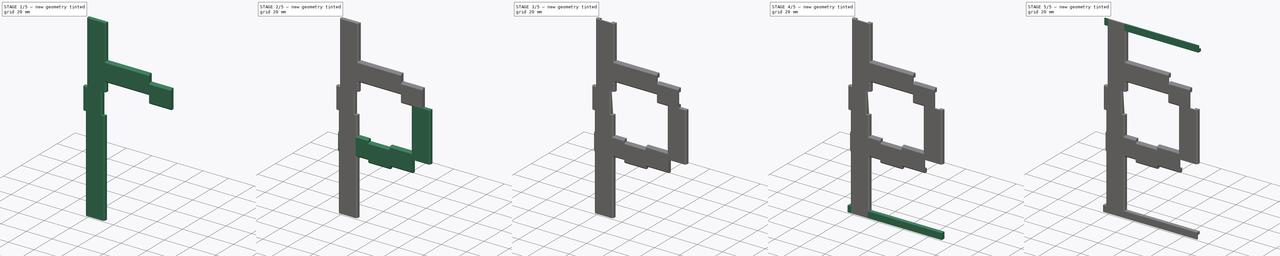
[diagram: build sequence overview — one tinted view per stage of 5, left to right]
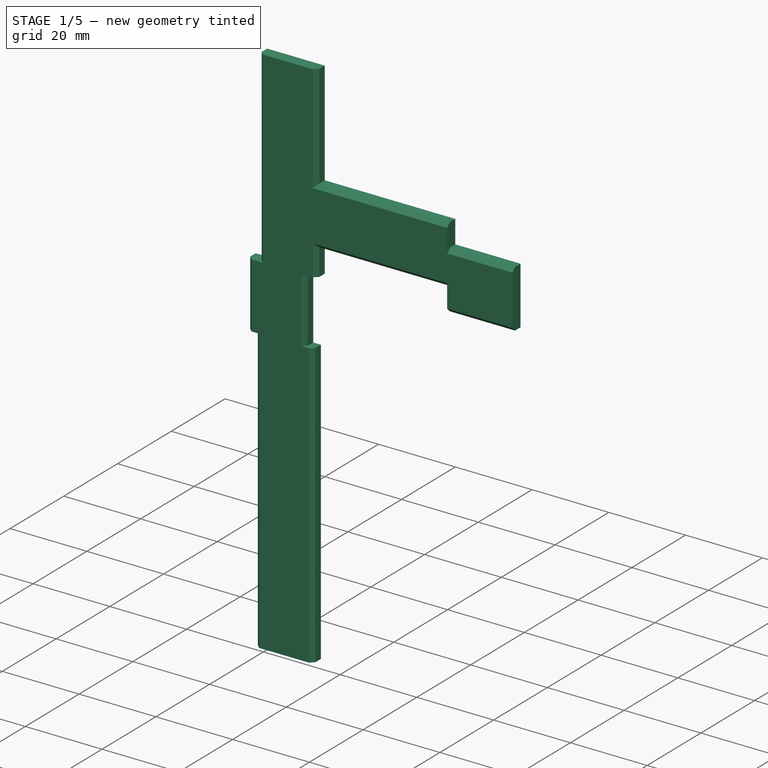
[diagram: stage 1 of 5 — iso view after this stage's code; geometry added in this stage tinted green]
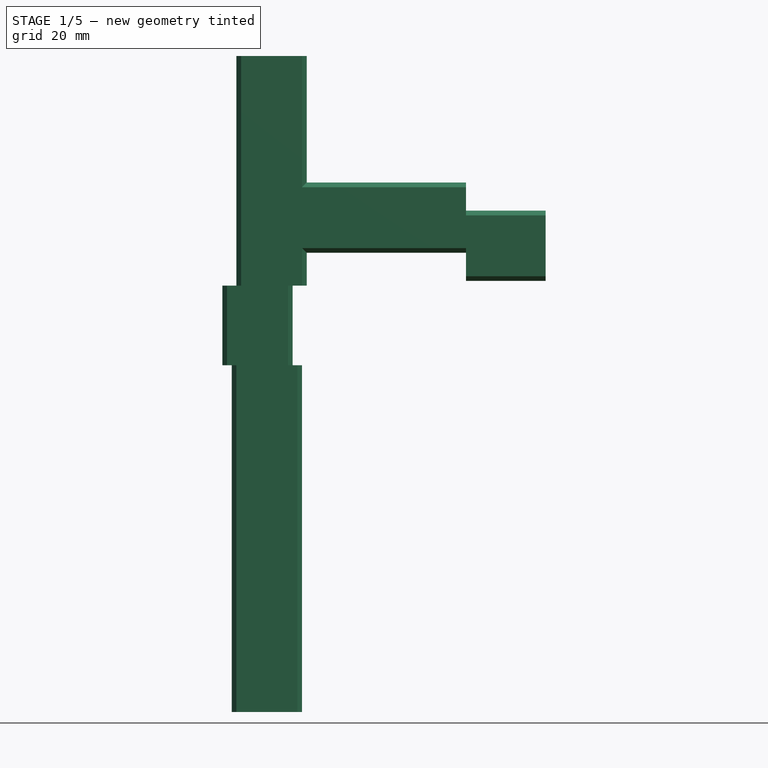
[diagram: stage 1 of 5 — front view after this stage's code; geometry added in this stage tinted green]
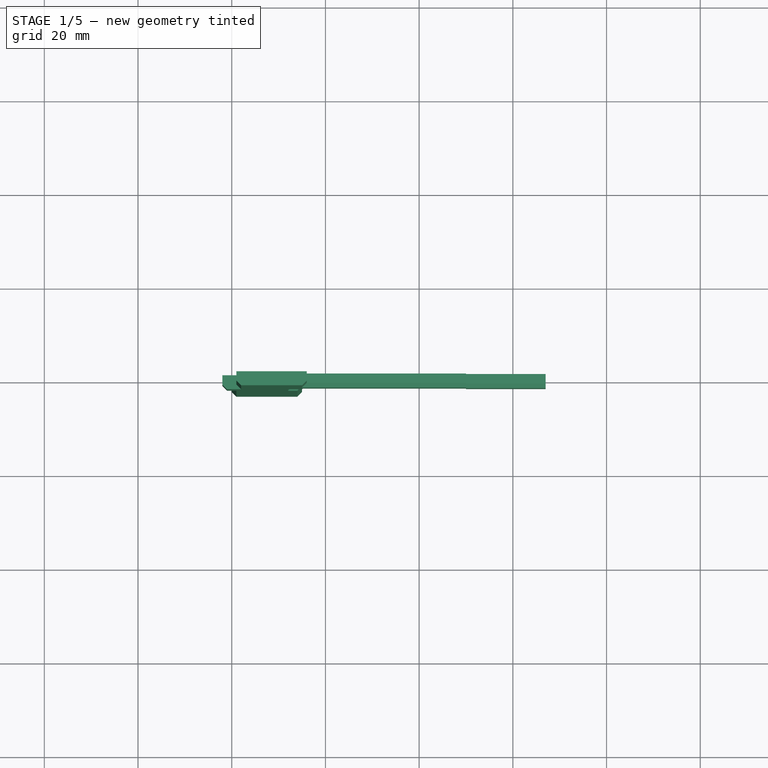
[diagram: stage 1 of 5 — top view after this stage's code; geometry added in this stage tinted green]
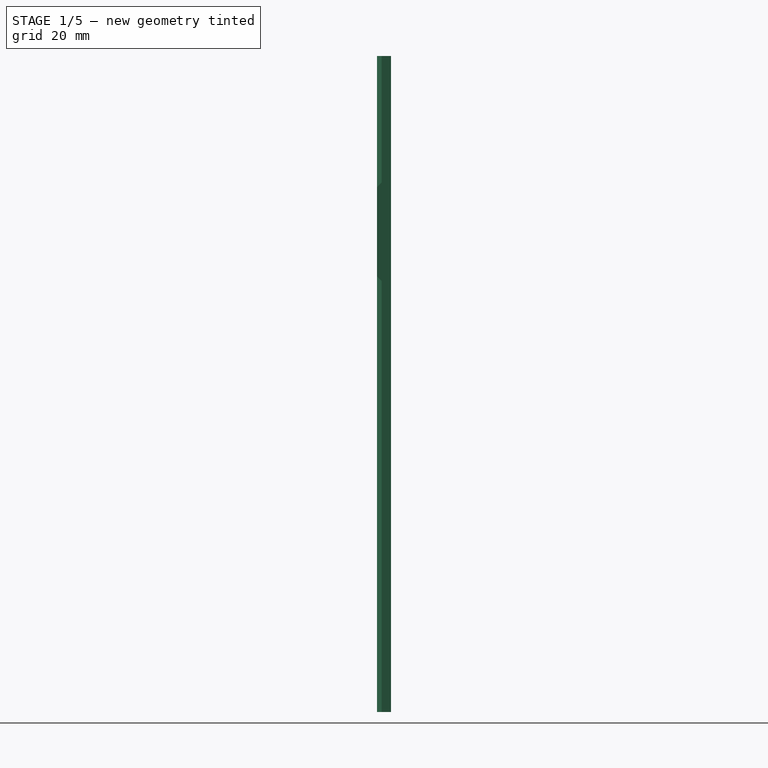
[diagram: stage 1 of 5 — right view after this stage's code; geometry added in this stage tinted green]
FCSTD DOCUMENT  (FreeCAD 0.20R29603 (Git))
Label: neopixelbracket_O
License: All rights reserved
LicenseURL: http://en.wikipedia.org/wiki/All_rights_reserved
objects: Sketcher::SketchObject×26, PartDesign::Pocket×13, PartDesign::Pad×11, PartDesign::Body×1
note: 75 computed .brp shape members not serialized (recipe doc carries the construction recipe); baked Part::Feature solids carry a one-line shape summary decoded from their .brp

FEATURE [Sketcher::SketchObject] Sketch  label="Vertical left long (start)"
  FullyConstrained = true
  MapMode = 5
  Support = -> [XY_Plane]
  sketch-geometry (6):
    g0: LineSegment StartX=0 StartY=0 StartZ=0 EndX=15 EndY=0 EndZ=0
    g1: LineSegment StartX=15 StartY=0 StartZ=0 EndX=15 EndY=-2 EndZ=0
    g2: LineSegment StartX=15 StartY=-2 StartZ=0 EndX=14 EndY=-3 EndZ=0
    g3: LineSegment StartX=14 StartY=-3 StartZ=0 EndX=1 EndY=-3 EndZ=0
    g4: LineSegment StartX=1 StartY=-3 StartZ=0 EndX=0 EndY=-2 EndZ=0
    g5: LineSegment StartX=0 StartY=-2 StartZ=0 EndX=0 EndY=0 EndZ=0
  constraints (17):
    c: Horizontal(g0)
    c: Coincident(g0,g1)
    c: Vertical(g1)
    c: Coincident(g1,g2)
    c: Coincident(g2,g3)
    c: Horizontal(g3)
    c: Coincident(g3,g4)
    c: Coincident(g4,g5)
    c: Coincident(g5,g0)
    c: Vertical(g5)
    c: DistanceX(g0,g0) = 15
    c: DistanceY(g1,g1) = 2
    c: DistanceY(g2,g2) = 1
    c: DistanceX(g2,g2) = 1
    c: DistanceY(g5,g5) = 2
    c: DistanceX(g4,g4) = 1
    c: Coincident(g0,g-1)
FEATURE [Sketcher::SketchObject] Sketch001  label="SketchSjabloon1"
  FullyConstrained = false
  MapMode = 5
  sketch-geometry (6):
    g0: LineSegment StartX=20.6736 StartY=7.69655 StartZ=0 EndX=35.6736 EndY=7.69655 EndZ=0
    g1: LineSegment StartX=35.6736 StartY=7.69655 StartZ=0 EndX=35.6736 EndY=5.69655 EndZ=0
    g2: LineSegment StartX=35.6736 StartY=5.69655 StartZ=0 EndX=34.6736 EndY=4.69655 EndZ=0
    g3: LineSegment StartX=34.6736 StartY=4.69655 StartZ=0 EndX=21.6736 EndY=4.69655 EndZ=0
    g4: LineSegment StartX=21.6736 StartY=4.69655 StartZ=0 EndX=20.6736 EndY=5.69655 EndZ=0
    g5: LineSegment StartX=20.6736 StartY=5.69655 StartZ=0 EndX=20.6736 EndY=7.69655 EndZ=0
  constraints (16):
    c: Horizontal(g0)
    c: Coincident(g0,g1)
    c: Vertical(g1)
    c: Coincident(g1,g2)
    c: Coincident(g2,g3)
    c: Horizontal(g3)
    c: Coincident(g3,g4)
    c: Coincident(g4,g5)
    c: Coincident(g5,g0)
    c: Vertical(g5)
    c: DistanceX(g0,g0) = 15
    c: DistanceY(g1,g1) = 2
    c: DistanceY(g2,g2) = 1
    c: DistanceX(g2,g2) = 1
    c: DistanceY(g5,g5) = 2
    c: DistanceX(g4,g4) = 1
FEATURE [PartDesign::Pad] Pad
  Direction = (0,0,1)
  Length = 74
  Length2 = 10
  Profile = -> Sketch
  ReferenceAxis = -> Sketch [N_Axis]
  Type = 0
FEATURE [Sketcher::SketchObject] Sketch002  label="Vertical left (2)"
  FullyConstrained = true
  MapMode = 5
  Placement = pos=(0,0,74) rot=(0,0,1;0rad)
  Support = -> [Pad]
  sketch-geometry (6):
    g0: LineSegment StartX=-2 StartY=0 StartZ=0 EndX=13 EndY=0 EndZ=0
    g1: LineSegment StartX=13 StartY=0 StartZ=0 EndX=13 EndY=-2 EndZ=0
    g2: LineSegment StartX=13 StartY=-2 StartZ=0 EndX=12 EndY=-3 EndZ=0
    g3: LineSegment StartX=12 StartY=-3 StartZ=0 EndX=-1 EndY=-3 EndZ=0
    g4: LineSegment StartX=-1 StartY=-3 StartZ=0 EndX=-2 EndY=-2 EndZ=0
    g5: LineSegment StartX=-2 StartY=-2 StartZ=0 EndX=-2 EndY=0 EndZ=0
  constraints (18):
    c: Horizontal(g0)
    c: Coincident(g0,g1)
    c: Vertical(g1)
    c: Coincident(g1,g2)
    c: Coincident(g2,g3)
    c: Horizontal(g3)
    c: Coincident(g3,g4)
    c: Coincident(g4,g5)
    c: Coincident(g5,g0)
    c: Vertical(g5)
    c: DistanceX(g0,g0) = 15
    c: DistanceY(g1,g1) = 2
    c: DistanceY(g2,g2) = 1
    c: DistanceX(g2,g2) = 1
    c: DistanceY(g5,g5) = 2
    c: DistanceX(g4,g4) = 1
    c: DistanceY(g-1,g0) = 0
    c: DistanceX(g0,g-1) = 2
FEATURE [PartDesign::Pad] Pad001
  BaseFeature = -> Pad
  Direction = (0,0,1)
  Length = 17
  Length2 = 10
  Profile = -> Sketch002
  ReferenceAxis = -> Sketch002 [N_Axis]
  Type = 0
FEATURE [Sketcher::SketchObject] Sketch003  label="Vertical left long (3)"
  ExternalGeometry = -> [Pad001]
  FullyConstrained = true
  MapMode = 5
  Placement = pos=(0,0,91) rot=(0,0,1;0rad)
  Support = -> [Pad001]
  sketch-geometry (6):
    g0: LineSegment StartX=1 StartY=0 StartZ=0 EndX=16 EndY=0 EndZ=0
    g1: LineSegment StartX=16 StartY=0 StartZ=0 EndX=16 EndY=-2 EndZ=0
    g2: LineSegment StartX=16 StartY=-2 StartZ=0 EndX=15 EndY=-3 EndZ=0
    g3: LineSegment StartX=15 StartY=-3 StartZ=0 EndX=2 EndY=-3 EndZ=0
    g4: LineSegment StartX=2 StartY=-3 StartZ=0 EndX=1 EndY=-2 EndZ=0
    g5: LineSegment StartX=1 StartY=-2 StartZ=0 EndX=1 EndY=0 EndZ=0
  constraints (18):
    c: Horizontal(g0)
    c: Coincident(g0,g1)
    c: Vertical(g1)
    c: Coincident(g1,g2)
    c: Coincident(g2,g3)
    c: Horizontal(g3)
    c: Coincident(g3,g4)
    c: Coincident(g4,g5)
    c: Coincident(g5,g0)
    c: Vertical(g5)
    c: DistanceX(g0,g0) = 15
    c: DistanceY(g1,g1) = 2
    c: DistanceY(g2,g2) = 1
    c: DistanceX(g2,g2) = 1
    c: DistanceY(g5,g5) = 2
    c: DistanceX(g4,g4) = 1
    c: DistanceY(g-3,g0) = 0
    c: DistanceX(g-3,g0) = 3
FEATURE [PartDesign::Pad] Pad002
  BaseFeature = -> Pad001
  Direction = (0,0,1)
  Length = 49
  Length2 = 10
  Profile = -> Sketch003
  ReferenceAxis = -> Sketch003 [N_Axis]
  Type = 0
FEATURE [Sketcher::SketchObject] Sketch004  label="Horizontal bottom (4)"
  AttachmentOffset = pos=(0,0,-1) rot=(0,0,1;-1.5708rad)
  ExternalGeometry = -> [Pad002]
  FullyConstrained = true
  MapMode = 5
  Placement = pos=(15,0,0) rot=(0,-1,0;4.71239rad)
  Support = -> [Pad002]
  sketch-geometry (6):
    g0: LineSegment StartX=-113 StartY=-8e-15 StartZ=0 EndX=-98 EndY=-8e-15 EndZ=0
    g1: LineSegment StartX=-98 StartY=-8e-15 StartZ=0 EndX=-98 EndY=-2 EndZ=0
    g2: LineSegment StartX=-98 StartY=-2 StartZ=0 EndX=-99 EndY=-3 EndZ=0
    g3: LineSegment StartX=-99 StartY=-3 StartZ=0 EndX=-112 EndY=-3 EndZ=0
    g4: LineSegment StartX=-112 StartY=-3 StartZ=0 EndX=-113 EndY=-2 EndZ=0
    g5: LineSegment StartX=-113 StartY=-2 StartZ=0 EndX=-113 EndY=-8e-15 EndZ=0
  constraints (18):
    c: Horizontal(g0)
    c: Coincident(g0,g1)
    c: Vertical(g1)
    c: Coincident(g1,g2)
    c: Coincident(g2,g3)
    c: Horizontal(g3)
    c: Coincident(g3,g4)
    c: Coincident(g4,g5)
    c: Coincident(g5,g0)
    c: Vertical(g5)
    c: DistanceX(g0,g0) = 15
    c: DistanceY(g1,g1) = 2
    c: DistanceY(g2,g2) = 1
    c: DistanceX(g2,g2) = 1
    c: DistanceY(g5,g5) = 2
    c: DistanceX(g4,g4) = 1
    c: DistanceY(g0,g-4) = 0
    c: DistanceX(g0,g-4) = 7
FEATURE [PartDesign::Pad] Pad003
  BaseFeature = -> Pad002
  Direction = (1,0,0)
  Length = 35
  Length2 = 10
  Profile = -> Sketch004
  ReferenceAxis = -> Sketch004 [N_Axis]
  Type = 0
FEATURE [Sketcher::SketchObject] Sketch005  label="Horizontal bottom (5)"
  AttachmentOffset = pos=(0,0,0) rot=(0,0,1;-1.5708rad)
  ExternalGeometry = -> [Pad003]
  FullyConstrained = true
  MapMode = 5
  Placement = pos=(50,0,-1.25e-14) rot=(0,-1,0;4.71239rad)
  Support = -> [Pad003]
  sketch-geometry (6):
    g0: LineSegment StartX=-107 StartY=9e-16 StartZ=0 EndX=-92 EndY=9e-16 EndZ=0
    g1: LineSegment StartX=-92 StartY=9e-16 StartZ=0 EndX=-92 EndY=-2 EndZ=0
    g2: LineSegment StartX=-92 StartY=-2 StartZ=0 EndX=-93 EndY=-3 EndZ=0
    g3: LineSegment StartX=-93 StartY=-3 StartZ=0 EndX=-106 EndY=-3 EndZ=0
    g4: LineSegment StartX=-106 StartY=-3 StartZ=0 EndX=-107 EndY=-2 EndZ=0
    g5: LineSegment StartX=-107 StartY=-2 StartZ=0 EndX=-107 EndY=9e-16 EndZ=0
  constraints (18):
    c: Horizontal(g0)
    c: Coincident(g0,g1)
    c: Vertical(g1)
    c: Coincident(g1,g2)
    c: Coincident(g2,g3)
    c: Horizontal(g3)
    c: Coincident(g3,g4)
    c: Coincident(g4,g5)
    c: Coincident(g5,g0)
    c: Vertical(g5)
    c: DistanceX(g0,g0) = 15
    c: DistanceY(g1,g1) = 2
    c: DistanceY(g2,g2) = 1
    c: DistanceX(g2,g2) = 1
    c: DistanceY(g5,g5) = 2
    c: DistanceX(g4,g4) = 1
    c: DistanceX(g-3,g0) = 6
    c: DistanceY(g-3,g0) = 0
FEATURE [PartDesign::Pad] Pad004
  BaseFeature = -> Pad003
  Direction = (1,-1e-16,-2e-16)
  Length = 17
  Length2 = 10
  Profile = -> Sketch005
  ReferenceAxis = -> Sketch005 [N_Axis]
  Type = 0
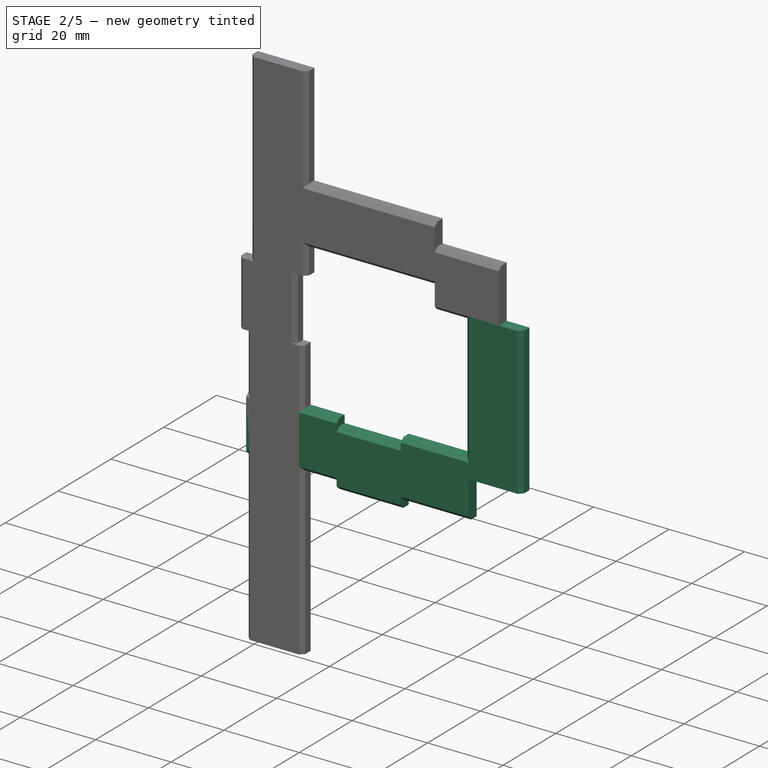
[diagram: stage 2 of 5 — iso view after this stage's code; geometry added in this stage tinted green]
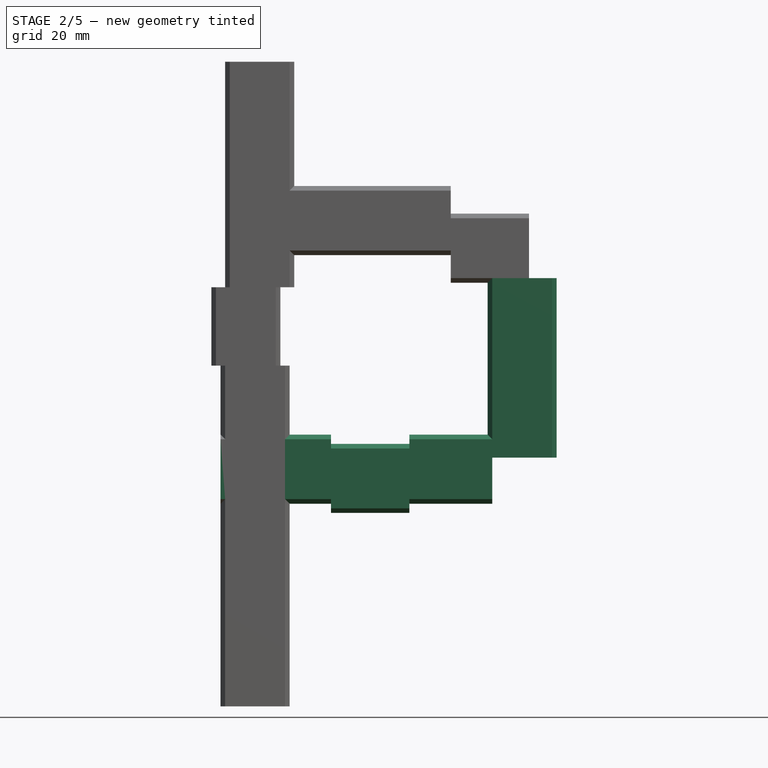
[diagram: stage 2 of 5 — front view after this stage's code; geometry added in this stage tinted green]
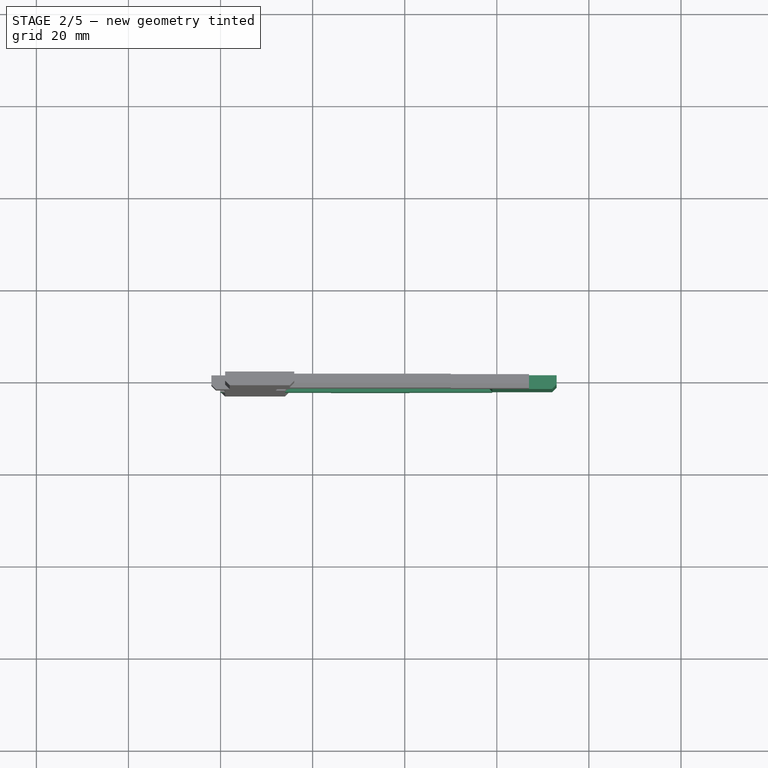
[diagram: stage 2 of 5 — top view after this stage's code; geometry added in this stage tinted green]
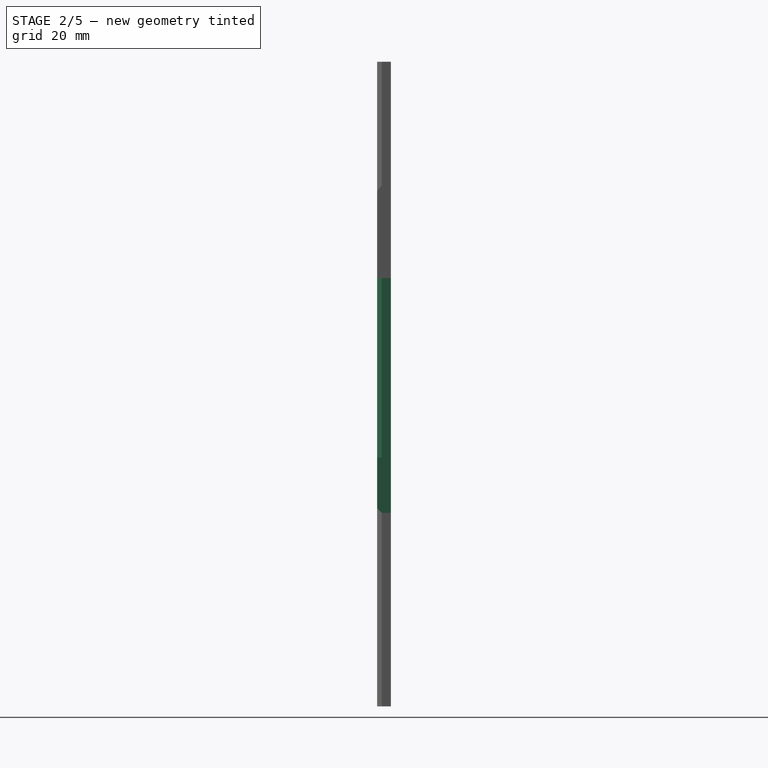
[diagram: stage 2 of 5 — right view after this stage's code; geometry added in this stage tinted green]
FEATURE [Sketcher::SketchObject] Sketch006  label="Vertical right (6)"
  AttachmentOffset = pos=(0,0,-1) rot=(0,0,1;3.14159rad)
  ExternalGeometry = -> [Pad004]
  FullyConstrained = true
  MapMode = 5
  Placement = pos=(2.07e-14,7.3e-15,93) rot=(0,-1,0;3.14159rad)
  Support = -> [Pad004]
  sketch-geometry (6):
    g0: LineSegment StartX=-73 StartY=-8.9e-15 StartZ=0 EndX=-58 EndY=-8.9e-15 EndZ=0
    g1: LineSegment StartX=-58 StartY=-8.9e-15 StartZ=0 EndX=-58 EndY=-2 EndZ=0
    g2: LineSegment StartX=-58 StartY=-2 StartZ=0 EndX=-59 EndY=-3 EndZ=0
    g3: LineSegment StartX=-59 StartY=-3 StartZ=0 EndX=-72 EndY=-3 EndZ=0
    g4: LineSegment StartX=-72 StartY=-3 StartZ=0 EndX=-73 EndY=-2 EndZ=0
    g5: LineSegment StartX=-73 StartY=-2 StartZ=0 EndX=-73 EndY=-8.9e-15 EndZ=0
  constraints (18):
    c: Horizontal(g0)
    c: Coincident(g0,g1)
    c: Vertical(g1)
    c: Coincident(g1,g2)
    c: Coincident(g2,g3)
    c: Horizontal(g3)
    c: Coincident(g3,g4)
    c: Coincident(g4,g5)
    c: Coincident(g5,g0)
    c: Vertical(g5)
    c: DistanceX(g0,g0) = 15
    c: DistanceY(g1,g1) = 2
    c: DistanceY(g2,g2) = 1
    c: DistanceX(g2,g2) = 1
    c: DistanceY(g5,g5) = 2
    c: DistanceX(g4,g4) = 1
    c: DistanceX(g-3,g0) = -6
    c: DistanceY(g-3,g0) = 0
FEATURE [PartDesign::Pad] Pad005
  BaseFeature = -> Pad004
  Direction = (-2e-16,-1e-16,-1)
  Length = 39
  Length2 = 10
  Profile = -> Sketch006
  ReferenceAxis = -> Sketch006 [N_Axis]
  Type = 0
FEATURE [Sketcher::SketchObject] Sketch007  label="Horizontal Top (7)"
  AttachmentOffset = pos=(0,0,-1) rot=(0,0,1;1.5708rad)
  ExternalGeometry = -> [Pad005]
  FullyConstrained = true
  MapMode = 5
  Placement = pos=(59,7.3e-15,-1.31e-14) rot=(0,-1,0;1.5708rad)
  Support = -> [Pad005]
  sketch-geometry (6):
    g0: LineSegment StartX=44 StartY=3.6e-15 StartZ=0 EndX=59 EndY=3.6e-15 EndZ=0
    g1: LineSegment StartX=59 StartY=3.6e-15 StartZ=0 EndX=59 EndY=-2 EndZ=0
    g2: LineSegment StartX=59 StartY=-2 StartZ=0 EndX=58 EndY=-3 EndZ=0
    g3: LineSegment StartX=58 StartY=-3 StartZ=0 EndX=45 EndY=-3 EndZ=0
    g4: LineSegment StartX=45 StartY=-3 StartZ=0 EndX=44 EndY=-2 EndZ=0
    g5: LineSegment StartX=44 StartY=-2 StartZ=0 EndX=44 EndY=3.6e-15 EndZ=0
  constraints (18):
    c: Horizontal(g0)
    c: Coincident(g0,g1)
    c: Vertical(g1)
    c: Coincident(g1,g2)
    c: Coincident(g2,g3)
    c: Horizontal(g3)
    c: Coincident(g3,g4)
    c: Coincident(g4,g5)
    c: Coincident(g5,g0)
    c: Vertical(g5)
    c: DistanceX(g0,g0) = 15
    c: DistanceY(g1,g1) = 2
    c: DistanceY(g2,g2) = 1
    c: DistanceX(g2,g2) = 1
    c: DistanceY(g5,g5) = 2
    c: DistanceX(g4,g4) = 1
    c: DistanceX(g0,g-3) = -5
    c: DistanceY(g-3,g0) = 0
FEATURE [PartDesign::Pad] Pad006
  BaseFeature = -> Pad005
  Direction = (-1,-2e-16,2e-16)
  Length = 18
  Length2 = 10
  Profile = -> Sketch007
  ReferenceAxis = -> Sketch007 [N_Axis]
  Type = 0
FEATURE [Sketcher::SketchObject] Sketch008  label="Horizontal top (8)"
  AttachmentOffset = pos=(0,0,0) rot=(0,0,1;1.5708rad)
  ExternalGeometry = -> [Pad006]
  FullyConstrained = true
  MapMode = 5
  Placement = pos=(41,0,-2.05e-14) rot=(0,-1,0;1.5708rad)
  Support = -> [Pad006]
  sketch-geometry (6):
    g0: LineSegment StartX=42 StartY=8e-15 StartZ=0 EndX=57 EndY=8e-15 EndZ=0
    g1: LineSegment StartX=57 StartY=8e-15 StartZ=0 EndX=57 EndY=-2 EndZ=0
    g2: LineSegment StartX=57 StartY=-2 StartZ=0 EndX=56 EndY=-3 EndZ=0
    g3: LineSegment StartX=56 StartY=-3 StartZ=0 EndX=43 EndY=-3 EndZ=0
    g4: LineSegment StartX=43 StartY=-3 StartZ=0 EndX=42 EndY=-2 EndZ=0
    g5: LineSegment StartX=42 StartY=-2 StartZ=0 EndX=42 EndY=8e-15 EndZ=0
  constraints (18):
    c: Horizontal(g0)
    c: Coincident(g0,g1)
    c: Vertical(g1)
    c: Coincident(g1,g2)
    c: Coincident(g2,g3)
    c: Horizontal(g3)
    c: Coincident(g3,g4)
    c: Coincident(g4,g5)
    c: Coincident(g5,g0)
    c: Vertical(g5)
    c: DistanceX(g0,g0) = 15
    c: DistanceY(g1,g1) = 2
    c: DistanceY(g2,g2) = 1
    c: DistanceX(g2,g2) = 1
    c: DistanceY(g5,g5) = 2
    c: DistanceX(g4,g4) = 1
    c: DistanceX(g0,g-3) = 2
    c: DistanceY(g-3,g0) = 0
FEATURE [PartDesign::Pad] Pad007
  BaseFeature = -> Pad006
  Direction = (-1,0,3e-16)
  Length = 17
  Length2 = 10
  Profile = -> Sketch008
  ReferenceAxis = -> Sketch008 [N_Axis]
  Type = 0
FEATURE [Sketcher::SketchObject] Sketch009  label="Horizontal Top (9)"
  AttachmentOffset = pos=(0,0,0) rot=(0,0,1;1.5708rad)
  ExternalGeometry = -> [Pad007]
  FullyConstrained = true
  MapMode = 5
  Placement = pos=(24,0,-1.2e-14) rot=(0,-1,0;1.5708rad)
  Support = -> [Pad007]
  sketch-geometry (6):
    g0: LineSegment StartX=44 StartY=8e-15 StartZ=0 EndX=59 EndY=8e-15 EndZ=0
    g1: LineSegment StartX=59 StartY=8e-15 StartZ=0 EndX=59 EndY=-2 EndZ=0
    g2: LineSegment StartX=59 StartY=-2 StartZ=0 EndX=58 EndY=-3 EndZ=0
    g3: LineSegment StartX=58 StartY=-3 StartZ=0 EndX=45 EndY=-3 EndZ=0
    g4: LineSegment StartX=45 StartY=-3 StartZ=0 EndX=44 EndY=-2 EndZ=0
    g5: LineSegment StartX=44 StartY=-2 StartZ=0 EndX=44 EndY=8e-15 EndZ=0
  constraints (18):
    c: Horizontal(g0)
    c: Coincident(g0,g1)
    c: Vertical(g1)
    c: Coincident(g1,g2)
    c: Coincident(g2,g3)
    c: Horizontal(g3)
    c: Coincident(g3,g4)
    c: Coincident(g4,g5)
    c: Coincident(g5,g0)
    c: Vertical(g5)
    c: DistanceX(g0,g0) = 15
    c: DistanceY(g1,g1) = 2
    c: DistanceY(g2,g2) = 1
    c: DistanceX(g2,g2) = 1
    c: DistanceY(g5,g5) = 2
    c: DistanceX(g4,g4) = 1
    c: DistanceX(g0,g-3) = -2
    c: DistanceY(g-3,g0) = 0
FEATURE [PartDesign::Pad] Pad008
  BaseFeature = -> Pad007
  Direction = (-1,0,3e-16)
  Length = 24
  Length2 = 10
  Profile = -> Sketch009
  ReferenceAxis = -> Sketch009 [N_Axis]
  Type = 0
FEATURE [Sketcher::SketchObject] Sketch010
  FullyConstrained = true
  MapMode = 5
  Placement = pos=(0,0,0) rot=(1,0,0;3.14159rad)
  Support = -> [Pad008]
  sketch-geometry (8):
    g0: LineSegment StartX=2.5 StartY=2 StartZ=0 EndX=12.5 EndY=2 EndZ=0
    g1: LineSegment StartX=12.5 StartY=2 StartZ=0 EndX=12.5 EndY=1.5 EndZ=0
    g2: LineSegment StartX=12.5 StartY=1.5 StartZ=0 EndX=12 EndY=1.5 EndZ=0
    g3: LineSegment StartX=12 StartY=1.5 StartZ=0 EndX=12 EndY=-2e-16 EndZ=0
    g4: LineSegment StartX=12 StartY=-2e-16 StartZ=0 EndX=3 EndY=-2e-16 EndZ=0
    g5: LineSegment StartX=3 StartY=-2e-16 StartZ=0 EndX=3 EndY=1.5 EndZ=0
    g6: LineSegment StartX=3 StartY=1.5 StartZ=0 EndX=2.5 EndY=1.5 EndZ=0
    g7: LineSegment StartX=2.5 StartY=1.5 StartZ=0 EndX=2.5 EndY=2 EndZ=0
  constraints (24):
    c: Horizontal(g0)
    c: Coincident(g0,g1)
    c: Vertical(g1)
    c: Coincident(g1,g2)
    c: Horizontal(g2)
    c: Coincident(g2,g3)
    c: Vertical(g3)
    c: Coincident(g3,g4)
    c: Horizontal(g4)
    c: Coincident(g4,g5)
    c: Vertical(g5)
    c: Coincident(g5,g6)
    c: Horizontal(g6)
    c: Coincident(g6,g7)
    c: Coincident(g7,g0)
    c: Vertical(g7)
    c: DistanceX(g0,g0) = 10
    c: DistanceY(g7,g7) = 0.5
    c: DistanceY(g1,g1) = 0.5
    c: DistanceX(g6,g6) = 0.5
    c: DistanceX(g2,g2) = 0.5
    c: DistanceY(g3,g3) = 1.5
    c: DistanceX(g-1,g4) = 3
    c: DistanceY(g4,g-1) = 0
FEATURE [Sketcher::SketchObject] Sketch011  label="SketchSjabloon2"
  FullyConstrained = false
  MapMode = 5
  Placement = pos=(0,0,0) rot=(1,0,0;3.14159rad)
  Support = -> [Pad008]
  sketch-geometry (8):
    g0: LineSegment StartX=1.32723 StartY=-2.16717 StartZ=0 EndX=11.3272 EndY=-2.16717 EndZ=0
    g1: LineSegment StartX=11.3272 StartY=-2.16717 StartZ=0 EndX=11.3272 EndY=-2.66717 EndZ=0
    g2: LineSegment StartX=11.3272 StartY=-2.66717 StartZ=0 EndX=10.8272 EndY=-2.66717 EndZ=0
    g3: LineSegment StartX=10.8272 StartY=-2.66717 StartZ=0 EndX=10.8272 EndY=-4.16717 EndZ=0
    g4: LineSegment StartX=10.8272 StartY=-4.16717 StartZ=0 EndX=1.82723 EndY=-4.16717 EndZ=0
    g5: LineSegment StartX=1.82723 StartY=-4.16717 StartZ=0 EndX=1.82723 EndY=-2.66717 EndZ=0
    g6: LineSegment StartX=1.82723 StartY=-2.66717 StartZ=0 EndX=1.32723 EndY=-2.66717 EndZ=0
    g7: LineSegment StartX=1.32723 StartY=-2.66717 StartZ=0 EndX=1.32723 EndY=-2.16717 EndZ=0
  constraints (22):
    c: Horizontal(g0)
    c: Coincident(g0,g1)
    c: Vertical(g1)
    c: Coincident(g1,g2)
    c: Horizontal(g2)
    c: Coincident(g2,g3)
    c: Vertical(g3)
    c: Coincident(g3,g4)
    c: Horizontal(g4)
    c: Coincident(g4,g5)
    c: Vertical(g5)
    c: Coincident(g5,g6)
    c: Horizontal(g6)
    c: Coincident(g6,g7)
    c: Coincident(g7,g0)
    c: Vertical(g7)
    c: DistanceX(g0,g0) = 10
    c: DistanceY(g7,g7) = 0.5
    c: DistanceY(g1,g1) = 0.5
    c: DistanceX(g6,g6) = 0.5
    c: DistanceX(g2,g2) = 0.5
    c: DistanceY(g3,g3) = 1.5
FEATURE [PartDesign::Pocket] Pocket
  BaseFeature = -> Pad008
  Direction = (0,0,1)
  Length = 74
  Length2 = 5
  Profile = -> Sketch010
  ReferenceAxis = -> Sketch010 [N_Axis]
  Type = 0
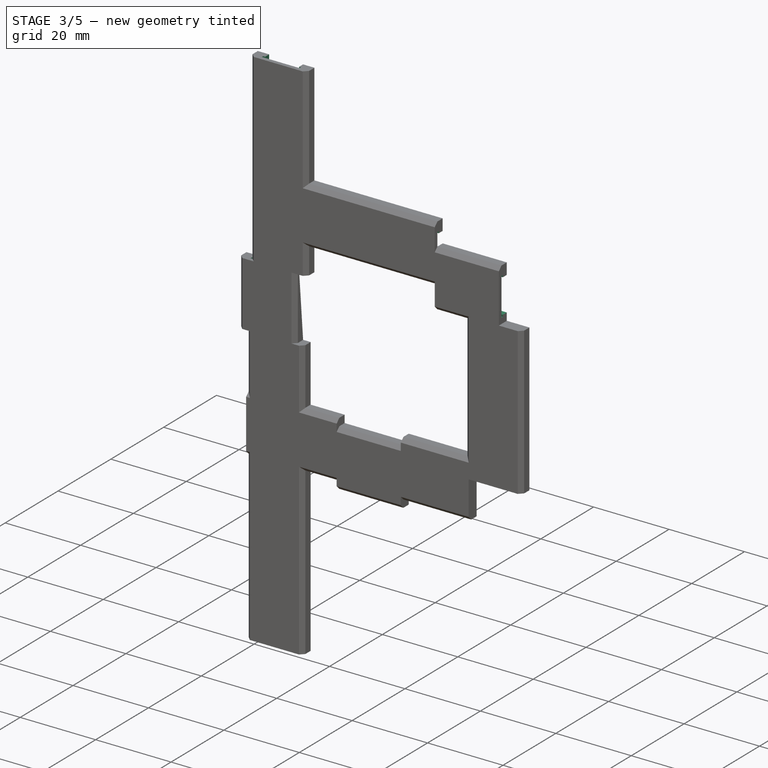
[diagram: stage 3 of 5 — iso view after this stage's code; geometry added in this stage tinted green]
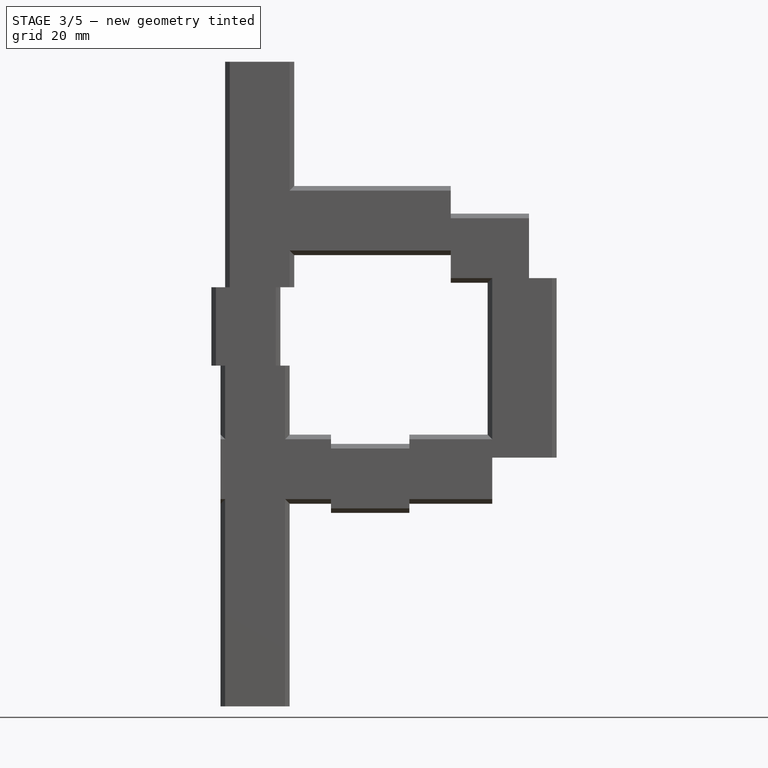
[diagram: stage 3 of 5 — front view after this stage's code; geometry added in this stage tinted green]
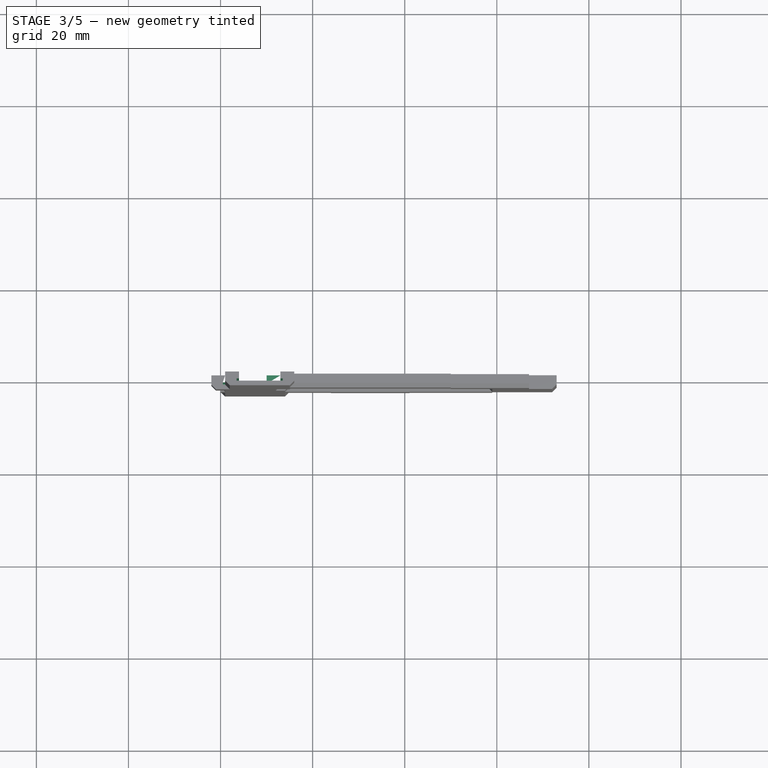
[diagram: stage 3 of 5 — top view after this stage's code; geometry added in this stage tinted green]
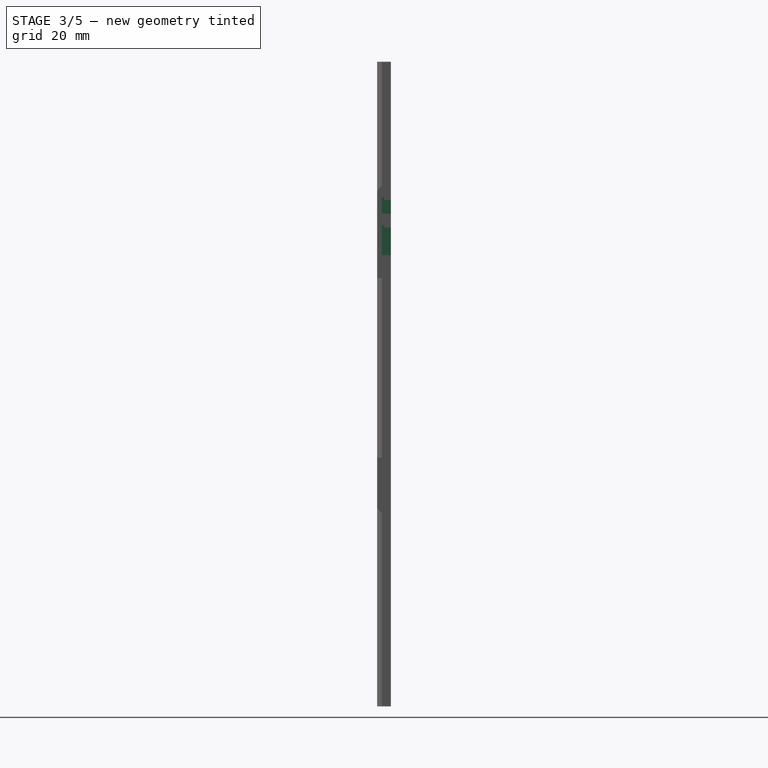
[diagram: stage 3 of 5 — right view after this stage's code; geometry added in this stage tinted green]
FEATURE [Sketcher::SketchObject] Sketch012
  ExternalGeometry = -> [Pocket]
  FullyConstrained = true
  MapMode = 5
  Placement = pos=(0,0,74) rot=(1,0,0;3.14159rad)
  Support = -> [Pocket]
  sketch-geometry (8):
    g0: LineSegment StartX=0.5 StartY=2 StartZ=0 EndX=10.5 EndY=2 EndZ=0
    g1: LineSegment StartX=10.5 StartY=2 StartZ=0 EndX=10.5 EndY=1.5 EndZ=0
    g2: LineSegment StartX=10.5 StartY=1.5 StartZ=0 EndX=10 EndY=1.5 EndZ=0
    g3: LineSegment StartX=10 StartY=1.5 StartZ=0 EndX=10 EndY=0 EndZ=0
    g4: LineSegment StartX=10 StartY=0 StartZ=0 EndX=1 EndY=0 EndZ=0
    g5: LineSegment StartX=1 StartY=0 StartZ=0 EndX=1 EndY=1.5 EndZ=0
    g6: LineSegment StartX=1 StartY=1.5 StartZ=0 EndX=0.5 EndY=1.5 EndZ=0
    g7: LineSegment StartX=0.5 StartY=1.5 StartZ=0 EndX=0.5 EndY=2 EndZ=0
  constraints (24):
    c: Horizontal(g0)
    c: Coincident(g0,g1)
    c: Vertical(g1)
    c: Coincident(g1,g2)
    c: Horizontal(g2)
    c: Coincident(g2,g3)
    c: Vertical(g3)
    c: Coincident(g3,g4)
    c: Horizontal(g4)
    c: Coincident(g4,g5)
    c: Vertical(g5)
    c: Coincident(g5,g6)
    c: Horizontal(g6)
    c: Coincident(g6,g7)
    c: Coincident(g7,g0)
    c: Vertical(g7)
    c: DistanceX(g0,g0) = 10
    c: DistanceY(g7,g7) = 0.5
    c: DistanceY(g1,g1) = 0.5
    c: DistanceX(g6,g6) = 0.5
    c: DistanceX(g2,g2) = 0.5
    c: DistanceY(g3,g3) = 1.5
    c: DistanceX(g-3,g4) = 3
    c: DistanceY(g4,g-3) = 0
FEATURE [PartDesign::Pocket] Pocket001
  BaseFeature = -> Pocket
  Direction = (0,0,1)
  Length = 17
  Length2 = 5
  Profile = -> Sketch012
  ReferenceAxis = -> Sketch012 [N_Axis]
  Type = 0
FEATURE [Sketcher::SketchObject] Sketch013
  ExternalGeometry = -> [Pocket001]
  FullyConstrained = true
  MapMode = 5
  Placement = pos=(0,0,91) rot=(1,0,0;3.14159rad)
  Support = -> [Pocket001]
  sketch-geometry (8):
    g0: LineSegment StartX=3.5 StartY=2 StartZ=0 EndX=13.5 EndY=2 EndZ=0
    g1: LineSegment StartX=13.5 StartY=2 StartZ=0 EndX=13.5 EndY=1.5 EndZ=0
    g2: LineSegment StartX=13.5 StartY=1.5 StartZ=0 EndX=13 EndY=1.5 EndZ=0
    g3: LineSegment StartX=13 StartY=1.5 StartZ=0 EndX=13 EndY=2e-16 EndZ=0
    g4: LineSegment StartX=13 StartY=2e-16 StartZ=0 EndX=4 EndY=2e-16 EndZ=0
    g5: LineSegment StartX=4 StartY=2e-16 StartZ=0 EndX=4 EndY=1.5 EndZ=0
    g6: LineSegment StartX=4 StartY=1.5 StartZ=0 EndX=3.5 EndY=1.5 EndZ=0
    g7: LineSegment StartX=3.5 StartY=1.5 StartZ=0 EndX=3.5 EndY=2 EndZ=0
  constraints (24):
    c: Horizontal(g0)
    c: Coincident(g0,g1)
    c: Vertical(g1)
    c: Coincident(g1,g2)
    c: Horizontal(g2)
    c: Coincident(g2,g3)
    c: Vertical(g3)
    c: Coincident(g3,g4)
    c: Horizontal(g4)
    c: Coincident(g4,g5)
    c: Vertical(g5)
    c: Coincident(g5,g6)
    c: Horizontal(g6)
    c: Coincident(g6,g7)
    c: Coincident(g7,g0)
    c: Vertical(g7)
    c: DistanceX(g0,g0) = 10
    c: DistanceY(g7,g7) = 0.5
    c: DistanceY(g1,g1) = 0.5
    c: DistanceX(g6,g6) = 0.5
    c: DistanceX(g2,g2) = 0.5
    c: DistanceY(g3,g3) = 1.5
    c: DistanceX(g3,g-3) = 3
    c: DistanceY(g3,g-3) = 0
FEATURE [PartDesign::Pocket] Pocket002
  BaseFeature = -> Pocket001
  Direction = (0,0,1)
  Length = 49
  Length2 = 5
  Profile = -> Sketch013
  ReferenceAxis = -> Sketch013 [N_Axis]
  Type = 0
FEATURE [Sketcher::SketchObject] Sketch014
  AttachmentOffset = pos=(0,0,0) rot=(0,0,1;1.5708rad)
  ExternalGeometry = -> [Pocket002]
  FullyConstrained = true
  MapMode = 5
  Placement = pos=(50,0,-1.25e-14) rot=(0.707107,0,0.707107;3.14159rad)
  Support = -> [Pocket002]
  sketch-geometry (8):
    g0: LineSegment StartX=100.5 StartY=2 StartZ=0 EndX=110.5 EndY=2 EndZ=0
    g1: LineSegment StartX=110.5 StartY=2 StartZ=0 EndX=110.5 EndY=1.5 EndZ=0
    g2: LineSegment StartX=110.5 StartY=1.5 StartZ=0 EndX=110 EndY=1.5 EndZ=0
    g3: LineSegment StartX=110 StartY=1.5 StartZ=0 EndX=110 EndY=-9e-16 EndZ=0
    g4: LineSegment StartX=110 StartY=-9e-16 StartZ=0 EndX=101 EndY=-9e-16 EndZ=0
    g5: LineSegment StartX=101 StartY=-9e-16 StartZ=0 EndX=101 EndY=1.5 EndZ=0
    g6: LineSegment StartX=101 StartY=1.5 StartZ=0 EndX=100.5 EndY=1.5 EndZ=0
    g7: LineSegment StartX=100.5 StartY=1.5 StartZ=0 EndX=100.5 EndY=2 EndZ=0
  constraints (24):
    c: Horizontal(g0)
    c: Coincident(g0,g1)
    c: Vertical(g1)
    c: Coincident(g1,g2)
    c: Horizontal(g2)
    c: Coincident(g2,g3)
    c: Vertical(g3)
    c: Coincident(g3,g4)
    c: Horizontal(g4)
    c: Coincident(g4,g5)
    c: Vertical(g5)
    c: Coincident(g5,g6)
    c: Horizontal(g6)
    c: Coincident(g6,g7)
    c: Coincident(g7,g0)
    c: Vertical(g7)
    c: DistanceX(g0,g0) = 10
    c: DistanceY(g7,g7) = 0.5
    c: DistanceY(g1,g1) = 0.5
    c: DistanceX(g6,g6) = 0.5
    c: DistanceX(g2,g2) = 0.5
    c: DistanceY(g3,g3) = 1.5
    c: DistanceX(g3,g-3) = 3
    c: DistanceY(g3,g-3) = 0
FEATURE [PartDesign::Pocket] Pocket003
  BaseFeature = -> Pocket002
  Direction = (-1,1e-16,2e-16)
  Length = 37
  Length2 = 5
  Profile = -> Sketch014
  ReferenceAxis = -> Sketch014 [N_Axis]
  Type = 0
FEATURE [Sketcher::SketchObject] Sketch015
  AttachmentOffset = pos=(0,0,0) rot=(0,0,1;1.5708rad)
  ExternalGeometry = -> [Pocket003]
  FullyConstrained = true
  MapMode = 5
  Placement = pos=(67,0,0) rot=(0.707107,0,0.707107;3.14159rad)
  Support = -> [Pocket003]
  sketch-geometry (8):
    g0: LineSegment StartX=94.5 StartY=2 StartZ=0 EndX=104.5 EndY=2 EndZ=0
    g1: LineSegment StartX=104.5 StartY=2 StartZ=0 EndX=104.5 EndY=1.5 EndZ=0
    g2: LineSegment StartX=104.5 StartY=1.5 StartZ=0 EndX=104 EndY=1.5 EndZ=0
    g3: LineSegment StartX=104 StartY=1.5 StartZ=0 EndX=104 EndY=8.9e-15 EndZ=0
    g4: LineSegment StartX=104 StartY=8.9e-15 StartZ=0 EndX=95 EndY=8.9e-15 EndZ=0
    g5: LineSegment StartX=95 StartY=8.9e-15 StartZ=0 EndX=95 EndY=1.5 EndZ=0
    g6: LineSegment StartX=95 StartY=1.5 StartZ=0 EndX=94.5 EndY=1.5 EndZ=0
    g7: LineSegment StartX=94.5 StartY=1.5 StartZ=0 EndX=94.5 EndY=2 EndZ=0
  constraints (24):
    c: Horizontal(g0)
    c: Coincident(g0,g1)
    c: Vertical(g1)
    c: Coincident(g1,g2)
    c: Horizontal(g2)
    c: Coincident(g2,g3)
    c: Vertical(g3)
    c: Coincident(g3,g4)
    c: Horizontal(g4)
    c: Coincident(g4,g5)
    c: Vertical(g5)
    c: Coincident(g5,g6)
    c: Horizontal(g6)
    c: Coincident(g6,g7)
    c: Coincident(g7,g0)
    c: Vertical(g7)
    c: DistanceX(g0,g0) = 10
    c: DistanceY(g7,g7) = 0.5
    c: DistanceY(g1,g1) = 0.5
    c: DistanceX(g6,g6) = 0.5
    c: DistanceX(g2,g2) = 0.5
    c: DistanceY(g3,g3) = 1.5
    c: DistanceX(g3,g-3) = 3
    c: DistanceY(g3,g-3) = 0
FEATURE [PartDesign::Pocket] Pocket004
  BaseFeature = -> Pocket003
  Direction = (-1,0,0)
  Length = 17
  Length2 = 5
  Profile = -> Sketch015
  ReferenceAxis = -> Sketch015 [N_Axis]
  Type = 0
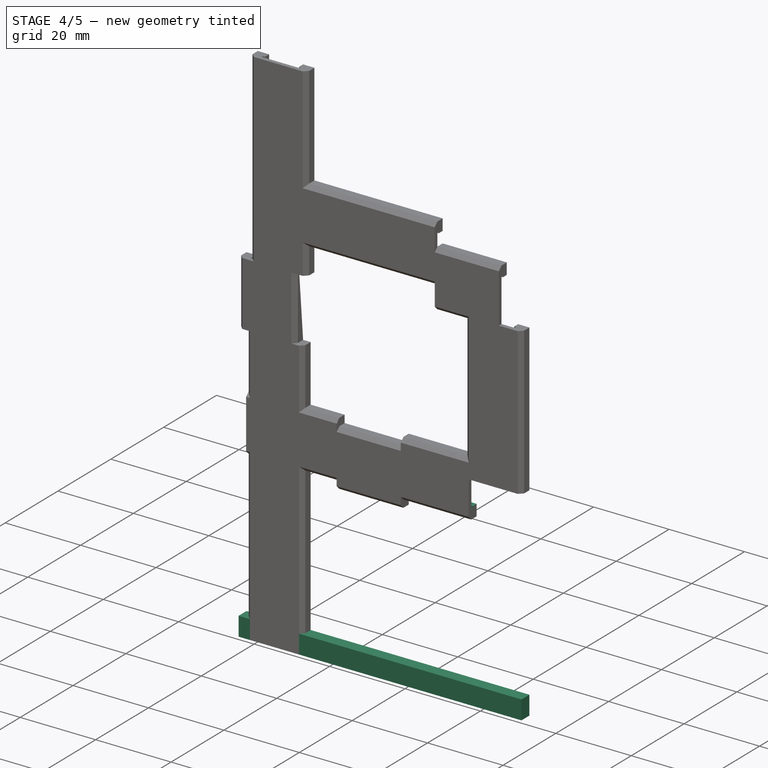
[diagram: stage 4 of 5 — iso view after this stage's code; geometry added in this stage tinted green]
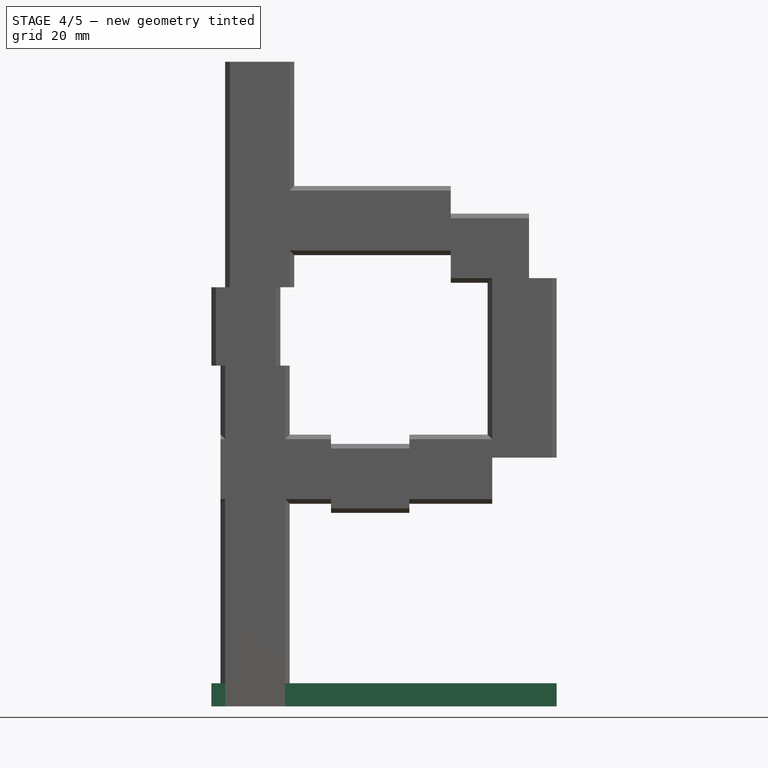
[diagram: stage 4 of 5 — front view after this stage's code; geometry added in this stage tinted green]
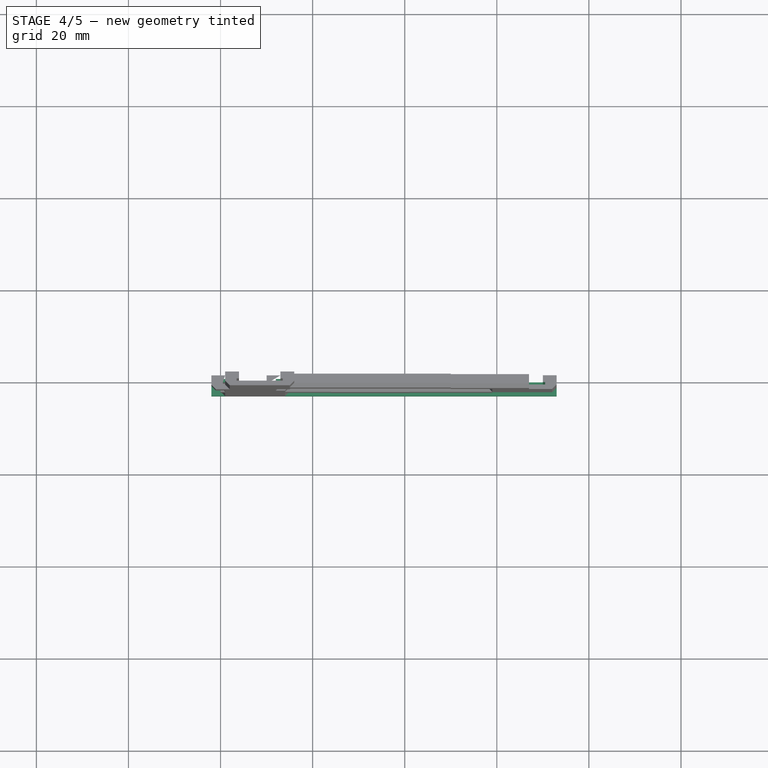
[diagram: stage 4 of 5 — top view after this stage's code; geometry added in this stage tinted green]
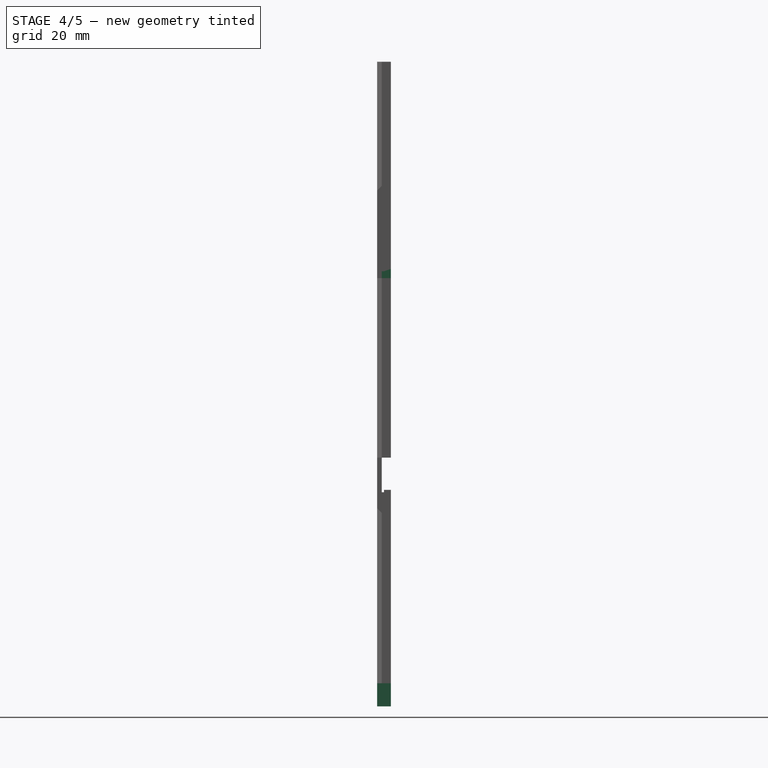
[diagram: stage 4 of 5 — right view after this stage's code; geometry added in this stage tinted green]
FEATURE [Sketcher::SketchObject] Sketch016
  ExternalGeometry = -> [Pocket004]
  FullyConstrained = true
  MapMode = 5
  Placement = pos=(0,0,54) rot=(1,0,0;3.14159rad)
  Support = -> [Pocket004]
  sketch-geometry (8):
    g0: LineSegment StartX=60.5 StartY=2 StartZ=0 EndX=70.5 EndY=2 EndZ=0
    g1: LineSegment StartX=70.5 StartY=2 StartZ=0 EndX=70.5 EndY=1.5 EndZ=0
    g2: LineSegment StartX=70.5 StartY=1.5 StartZ=0 EndX=70 EndY=1.5 EndZ=0
    g3: LineSegment StartX=70 StartY=1.5 StartZ=0 EndX=70 EndY=-4.2e-15 EndZ=0
    g4: LineSegment StartX=70 StartY=-4.2e-15 StartZ=0 EndX=61 EndY=-4.2e-15 EndZ=0
    g5: LineSegment StartX=61 StartY=-4.2e-15 StartZ=0 EndX=61 EndY=1.5 EndZ=0
    g6: LineSegment StartX=61 StartY=1.5 StartZ=0 EndX=60.5 EndY=1.5 EndZ=0
    g7: LineSegment StartX=60.5 StartY=1.5 StartZ=0 EndX=60.5 EndY=2 EndZ=0
  constraints (24):
    c: Horizontal(g0)
    c: Coincident(g0,g1)
    c: Vertical(g1)
    c: Coincident(g1,g2)
    c: Horizontal(g2)
    c: Coincident(g2,g3)
    c: Vertical(g3)
    c: Coincident(g3,g4)
    c: Horizontal(g4)
    c: Coincident(g4,g5)
    c: Vertical(g5)
    c: Coincident(g5,g6)
    c: Horizontal(g6)
    c: Coincident(g6,g7)
    c: Coincident(g7,g0)
    c: Vertical(g7)
    c: DistanceX(g0,g0) = 10
    c: DistanceY(g7,g7) = 0.5
    c: DistanceY(g1,g1) = 0.5
    c: DistanceX(g6,g6) = 0.5
    c: DistanceX(g2,g2) = 0.5
    c: DistanceY(g3,g3) = 1.5
    c: DistanceX(g3,g-3) = 3
    c: DistanceY(g3,g-3) = 0
FEATURE [PartDesign::Pocket] Pocket005
  BaseFeature = -> Pocket004
  Direction = (0,0,1)
  Length = 42
  Length2 = 5
  Profile = -> Sketch016
  ReferenceAxis = -> Sketch016 [N_Axis]
  Type = 0
FEATURE [Sketcher::SketchObject] Sketch017
  AttachmentOffset = pos=(0,0,2) rot=(0,0,1;1.5708rad)
  ExternalGeometry = -> [Pocket005]
  FullyConstrained = true
  MapMode = 5
  Placement = pos=(61,0,-3.03e-14) rot=(0.707107,0,0.707107;3.14159rad)
  Support = -> [Pocket005]
  sketch-geometry (8):
    g0: LineSegment StartX=46.5 StartY=2 StartZ=0 EndX=56.5 EndY=2 EndZ=0
    g1: LineSegment StartX=56.5 StartY=2 StartZ=0 EndX=56.5 EndY=1.5 EndZ=0
    g2: LineSegment StartX=56.5 StartY=1.5 StartZ=0 EndX=56 EndY=1.5 EndZ=0
    g3: LineSegment StartX=56 StartY=1.5 StartZ=0 EndX=56 EndY=3.1e-15 EndZ=0
    g4: LineSegment StartX=56 StartY=3.1e-15 StartZ=0 EndX=47 EndY=3.1e-15 EndZ=0
    g5: LineSegment StartX=47 StartY=3.1e-15 StartZ=0 EndX=47 EndY=1.5 EndZ=0
    g6: LineSegment StartX=47 StartY=1.5 StartZ=0 EndX=46.5 EndY=1.5 EndZ=0
    g7: LineSegment StartX=46.5 StartY=1.5 StartZ=0 EndX=46.5 EndY=2 EndZ=0
  constraints (24):
    c: Horizontal(g0)
    c: Coincident(g0,g1)
    c: Vertical(g1)
    c: Coincident(g1,g2)
    c: Horizontal(g2)
    c: Coincident(g2,g3)
    c: Vertical(g3)
    c: Coincident(g3,g4)
    c: Horizontal(g4)
    c: Coincident(g4,g5)
    c: Vertical(g5)
    c: Coincident(g5,g6)
    c: Horizontal(g6)
    c: Coincident(g6,g7)
    c: Coincident(g7,g0)
    c: Vertical(g7)
    c: DistanceX(g0,g0) = 10
    c: DistanceY(g7,g7) = 0.5
    c: DistanceY(g1,g1) = 0.5
    c: DistanceX(g6,g6) = 0.5
    c: DistanceX(g2,g2) = 0.5
    c: DistanceY(g3,g3) = 1.5
    c: DistanceX(g4,g-3) = -3
    c: DistanceY(g4,g-3) = 0
FEATURE [PartDesign::Pocket] Pocket006
  BaseFeature = -> Pocket005
  Direction = (-1,0,3e-16)
  Length = 20
  Length2 = 5
  Profile = -> Sketch017
  ReferenceAxis = -> Sketch017 [N_Axis]
  Type = 0
FEATURE [Sketcher::SketchObject] Sketch018
  AttachmentOffset = pos=(0,0,0) rot=(0,0,1;1.5708rad)
  ExternalGeometry = -> [Pocket006]
  FullyConstrained = true
  MapMode = 5
  Placement = pos=(41,0,-2.05e-14) rot=(0.707107,0,0.707107;3.14159rad)
  Support = -> [Pocket006]
  sketch-geometry (8):
    g0: LineSegment StartX=44.5 StartY=2 StartZ=0 EndX=54.5 EndY=2 EndZ=0
    g1: LineSegment StartX=54.5 StartY=2 StartZ=0 EndX=54.5 EndY=1.5 EndZ=0
    g2: LineSegment StartX=54.5 StartY=1.5 StartZ=0 EndX=54 EndY=1.5 EndZ=0
    g3: LineSegment StartX=54 StartY=1.5 StartZ=0 EndX=54 EndY=5.8e-15 EndZ=0
    g4: LineSegment StartX=54 StartY=5.8e-15 StartZ=0 EndX=45 EndY=5.8e-15 EndZ=0
    g5: LineSegment StartX=45 StartY=5.8e-15 StartZ=0 EndX=45 EndY=1.5 EndZ=0
    g6: LineSegment StartX=45 StartY=1.5 StartZ=0 EndX=44.5 EndY=1.5 EndZ=0
    g7: LineSegment StartX=44.5 StartY=1.5 StartZ=0 EndX=44.5 EndY=2 EndZ=0
  constraints (24):
    c: Horizontal(g0)
    c: Coincident(g0,g1)
    c: Vertical(g1)
    c: Coincident(g1,g2)
    c: Horizontal(g2)
    c: Coincident(g2,g3)
    c: Vertical(g3)
    c: Coincident(g3,g4)
    c: Horizontal(g4)
    c: Coincident(g4,g5)
    c: Vertical(g5)
    c: Coincident(g5,g6)
    c: Horizontal(g6)
    c: Coincident(g6,g7)
    c: Coincident(g7,g0)
    c: Vertical(g7)
    c: DistanceX(g0,g0) = 10
    c: DistanceY(g7,g7) = 0.5
    c: DistanceY(g1,g1) = 0.5
    c: DistanceX(g6,g6) = 0.5
    c: DistanceX(g2,g2) = 0.5
    c: DistanceY(g3,g3) = 1.5
    c: DistanceX(g4,g-3) = -3
    c: DistanceY(g4,g-3) = 0
FEATURE [PartDesign::Pocket] Pocket007
  BaseFeature = -> Pocket006
  Direction = (-1,0,3e-16)
  Length = 17
  Length2 = 5
  Profile = -> Sketch018
  ReferenceAxis = -> Sketch018 [N_Axis]
  Type = 0
FEATURE [Sketcher::SketchObject] Sketch019
  AttachmentOffset = pos=(0,0,0) rot=(0,0,1;-1.5708rad)
  ExternalGeometry = -> [Pocket007]
  FullyConstrained = true
  MapMode = 5
  Placement = pos=(0,0,0) rot=(-0.707107,0,0.707107;3.14159rad)
  Support = -> [Pocket007]
  sketch-geometry (8):
    g0: LineSegment StartX=-56.5 StartY=2 StartZ=0 EndX=-46.5 EndY=2 EndZ=0
    g1: LineSegment StartX=-46.5 StartY=2 StartZ=0 EndX=-46.5 EndY=1.5 EndZ=0
    g2: LineSegment StartX=-46.5 StartY=1.5 StartZ=0 EndX=-47 EndY=1.5 EndZ=0
    g3: LineSegment StartX=-47 StartY=1.5 StartZ=0 EndX=-47 EndY=-7.5e-15 EndZ=0
    g4: LineSegment StartX=-47 StartY=-7.5e-15 StartZ=0 EndX=-56 EndY=-7.5e-15 EndZ=0
    g5: LineSegment StartX=-56 StartY=-7.5e-15 StartZ=0 EndX=-56 EndY=1.5 EndZ=0
    g6: LineSegment StartX=-56 StartY=1.5 StartZ=0 EndX=-56.5 EndY=1.5 EndZ=0
    g7: LineSegment StartX=-56.5 StartY=1.5 StartZ=0 EndX=-56.5 EndY=2 EndZ=0
  constraints (24):
    c: Horizontal(g0)
    c: Coincident(g0,g1)
    c: Vertical(g1)
    c: Coincident(g1,g2)
    c: Horizontal(g2)
    c: Coincident(g2,g3)
    c: Vertical(g3)
    c: Coincident(g3,g4)
    c: Horizontal(g4)
    c: Coincident(g4,g5)
    c: Vertical(g5)
    c: Coincident(g5,g6)
    c: Horizontal(g6)
    c: Coincident(g6,g7)
    c: Coincident(g7,g0)
    c: Vertical(g7)
    c: DistanceX(g0,g0) = 10
    c: DistanceY(g7,g7) = 0.5
    c: DistanceY(g1,g1) = 0.5
    c: DistanceX(g6,g6) = 0.5
    c: DistanceX(g2,g2) = 0.5
    c: DistanceY(g3,g3) = 1.5
    c: DistanceX(g-3,g3) = -3
    c: DistanceY(g3,g-3) = 0
FEATURE [PartDesign::Pocket] Pocket008
  BaseFeature = -> Pocket007
  Direction = (1,0,0)
  Length = 24
  Length2 = 5
  Profile = -> Sketch019
  ReferenceAxis = -> Sketch019 [N_Axis]
  Type = 0
FEATURE [Sketcher::SketchObject] Sketch020
  AttachmentOffset = pos=(0,0,-17) rot=(0,0,1;0rad)
  ExternalGeometry = -> [Pocket008]
  FullyConstrained = true
  MapMode = 5
  Placement = pos=(-2,0,0) rot=(0.57735,0.57735,0.57735;2.0944rad)
  Support = -> [Pocket008]
  sketch-geometry (4):
    g0: LineSegment StartX=-3 StartY=5 StartZ=0 EndX=0 EndY=5 EndZ=0
    g1: LineSegment StartX=0 StartY=5 StartZ=0 EndX=0 EndY=0 EndZ=0
    g2: LineSegment StartX=0 StartY=0 StartZ=0 EndX=-3 EndY=0 EndZ=0
    g3: LineSegment StartX=-3 StartY=0 StartZ=0 EndX=-3 EndY=5 EndZ=0
  constraints (11):
    c: Coincident(g0,g1)
    c: Coincident(g1,g2)
    c: Coincident(g2,g3)
    c: Coincident(g3,g0)
    c: Horizontal(g0)
    c: Horizontal(g2)
    c: Vertical(g1)
    c: Vertical(g3)
    c: DistanceY(g1,g1) = 5
    c: DistanceX(g0,g0) = 3
    c: Coincident(g1,g-3)
FEATURE [PartDesign::Pad] Pad009
  BaseFeature = -> Pocket008
  Direction = (1,0,0)
  Length = 75
  Length2 = 10
  Profile = -> Sketch020
  ReferenceAxis = -> Sketch020 [N_Axis]
  Type = 0
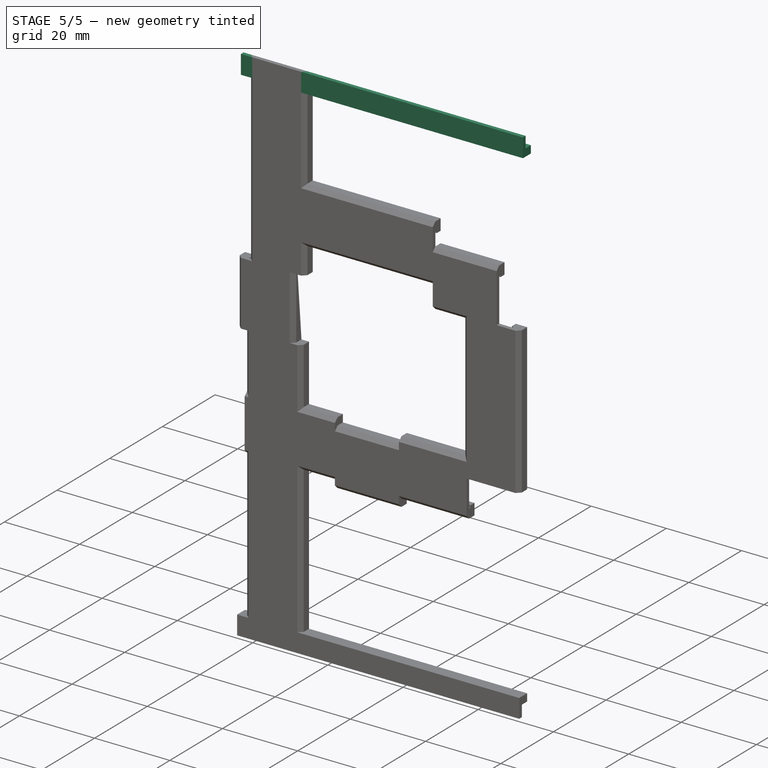
[diagram: stage 5 of 5 — iso view after this stage's code; geometry added in this stage tinted green]
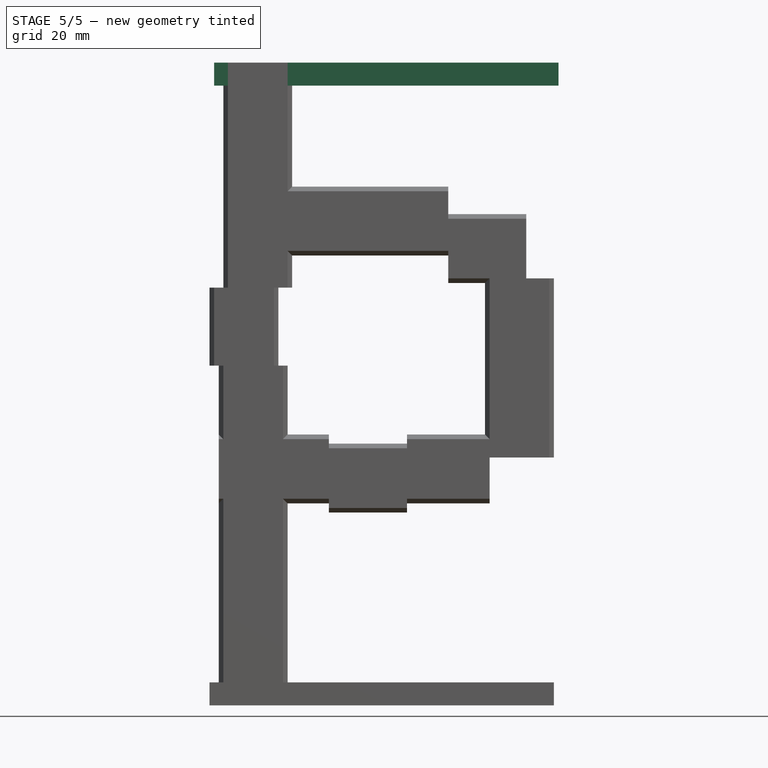
[diagram: stage 5 of 5 — front view after this stage's code; geometry added in this stage tinted green]
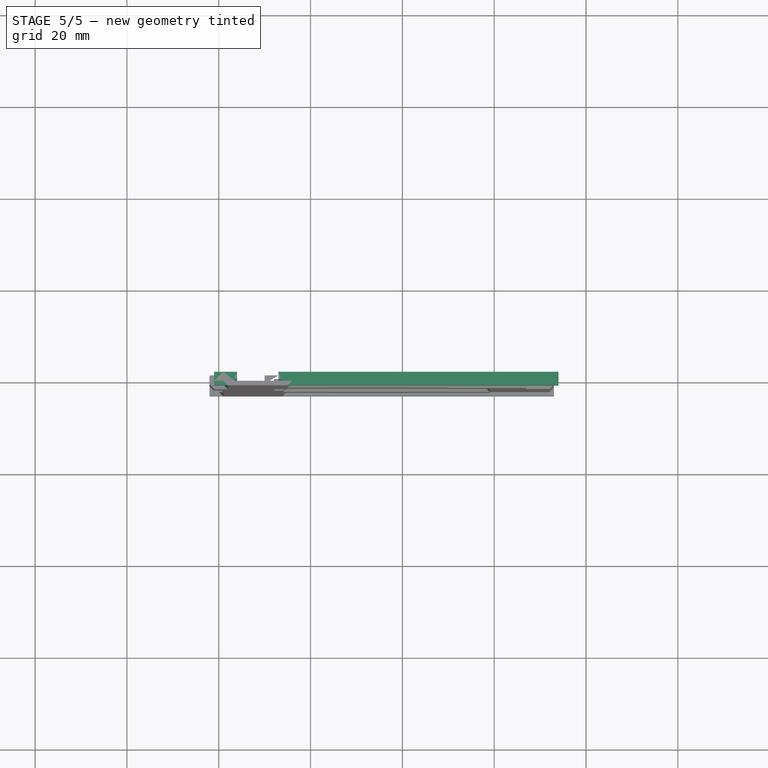
[diagram: stage 5 of 5 — top view after this stage's code; geometry added in this stage tinted green]
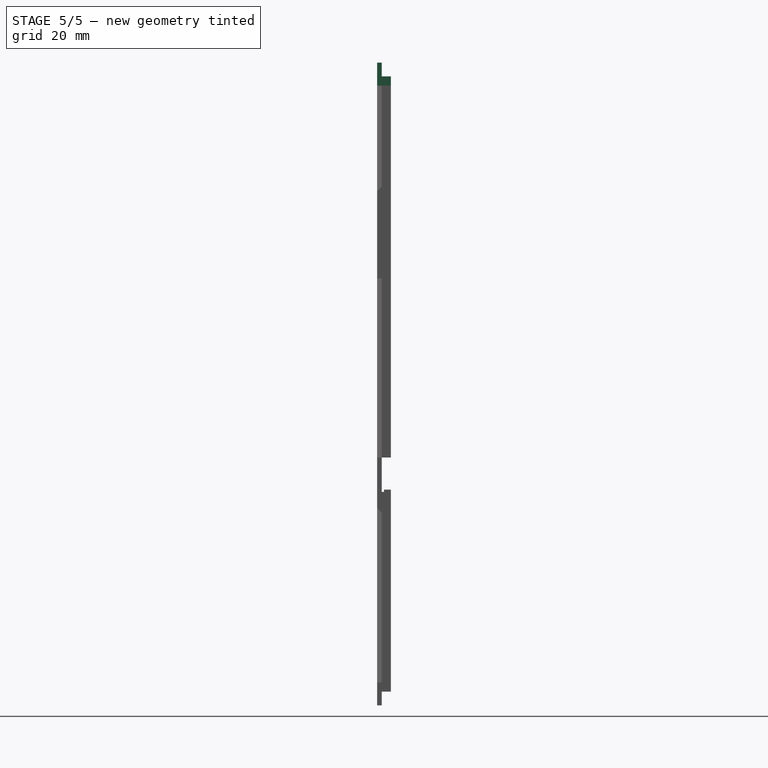
[diagram: stage 5 of 5 — right view after this stage's code; geometry added in this stage tinted green]
FEATURE [Sketcher::SketchObject] Sketch021
  FullyConstrained = true
  MapMode = 5
  Placement = pos=(73,0,0) rot=(0.57735,0.57735,0.57735;2.0944rad)
  Support = -> [Pad009]
  sketch-geometry (4):
    g0: LineSegment StartX=-2 StartY=3 StartZ=0 EndX=0 EndY=3 EndZ=0
    g1: LineSegment StartX=0 StartY=3 StartZ=0 EndX=0 EndY=0 EndZ=0
    g2: LineSegment StartX=0 StartY=0 StartZ=0 EndX=-2 EndY=0 EndZ=0
    g3: LineSegment StartX=-2 StartY=0 StartZ=0 EndX=-2 EndY=3 EndZ=0
  constraints (11):
    c: Coincident(g0,g1)
    c: Coincident(g1,g2)
    c: Coincident(g2,g3)
    c: Coincident(g3,g0)
    c: Horizontal(g0)
    c: Horizontal(g2)
    c: Vertical(g1)
    c: Vertical(g3)
    c: DistanceY(g1,g1) = 3
    c: DistanceX(g2,g2) = 2
    c: Coincident(g-1,g1)
FEATURE [PartDesign::Pocket] Pocket009
  BaseFeature = -> Pad009
  Direction = (-1,0,0)
  Length = 75
  Length2 = 5
  Profile = -> Sketch021
  ReferenceAxis = -> Sketch021 [N_Axis]
  Type = 0
FEATURE [Sketcher::SketchObject] Sketch022
  FullyConstrained = true
  MapMode = 5
  Placement = pos=(0,0,3) rot=(1,0,0;3.14159rad)
  Support = -> [Pocket009]
  sketch-geometry (8):
    g0: LineSegment StartX=2.5 StartY=2 StartZ=0 EndX=12.5 EndY=2 EndZ=0
    g1: LineSegment StartX=12.5 StartY=2 StartZ=0 EndX=12.5 EndY=1.5 EndZ=0
    g2: LineSegment StartX=12.5 StartY=1.5 StartZ=0 EndX=12 EndY=1.5 EndZ=0
    g3: LineSegment StartX=12 StartY=1.5 StartZ=0 EndX=12 EndY=0 EndZ=0
    g4: LineSegment StartX=12 StartY=0 StartZ=0 EndX=3 EndY=0 EndZ=0
    g5: LineSegment StartX=3 StartY=0 StartZ=0 EndX=3 EndY=1.5 EndZ=0
    g6: LineSegment StartX=3 StartY=1.5 StartZ=0 EndX=2.5 EndY=1.5 EndZ=0
    g7: LineSegment StartX=2.5 StartY=1.5 StartZ=0 EndX=2.5 EndY=2 EndZ=0
  constraints (24):
    c: Horizontal(g0)
    c: Coincident(g0,g1)
    c: Vertical(g1)
    c: Coincident(g1,g2)
    c: Horizontal(g2)
    c: Coincident(g2,g3)
    c: Vertical(g3)
    c: Coincident(g3,g4)
    c: Horizontal(g4)
    c: Coincident(g4,g5)
    c: Vertical(g5)
    c: Coincident(g5,g6)
    c: Horizontal(g6)
    c: Coincident(g6,g7)
    c: Coincident(g7,g0)
    c: Vertical(g7)
    c: DistanceX(g0,g0) = 10
    c: DistanceY(g7,g7) = 0.5
    c: DistanceY(g1,g1) = 0.5
    c: DistanceX(g6,g6) = 0.5
    c: DistanceX(g2,g2) = 0.5
    c: DistanceY(g3,g3) = 1.5
    c: DistanceX(g-1,g4) = 3
    c: DistanceY(g4,g-1) = 0
FEATURE [PartDesign::Pocket] Pocket010
  BaseFeature = -> Pocket009
  Direction = (0,0,1)
  Length = 2
  Length2 = 5
  Profile = -> Sketch022
  ReferenceAxis = -> Sketch022 [N_Axis]
  Type = 0
FEATURE [Sketcher::SketchObject] Sketch023
  AttachmentOffset = pos=(0,0,-17) rot=(0,0,1;0rad)
  ExternalGeometry = -> [Pocket010]
  FullyConstrained = true
  MapMode = 5
  Placement = pos=(-1,0,0) rot=(0.57735,0.57735,0.57735;2.0944rad)
  Support = -> [Pocket010]
  sketch-geometry (4):
    g0: LineSegment StartX=-3 StartY=140 StartZ=0 EndX=0 EndY=140 EndZ=0
    g1: LineSegment StartX=0 StartY=140 StartZ=0 EndX=0 EndY=135 EndZ=0
    g2: LineSegment StartX=0 StartY=135 StartZ=0 EndX=-3 EndY=135 EndZ=0
    g3: LineSegment StartX=-3 StartY=135 StartZ=0 EndX=-3 EndY=140 EndZ=0
  constraints (11):
    c: Coincident(g0,g1)
    c: Coincident(g1,g2)
    c: Coincident(g2,g3)
    c: Coincident(g3,g0)
    c: Horizontal(g0)
    c: Horizontal(g2)
    c: Vertical(g1)
    c: Vertical(g3)
    c: DistanceY(g1,g1) = 5
    c: DistanceX(g0,g0) = 3
    c: Coincident(g0,g-3)
FEATURE [PartDesign::Pad] Pad010
  BaseFeature = -> Pocket010
  Direction = (1,0,0)
  Length = 75
  Length2 = 10
  Profile = -> Sketch023
  ReferenceAxis = -> Sketch023 [N_Axis]
  Type = 0
FEATURE [Sketcher::SketchObject] Sketch024
  ExternalGeometry = -> [Pad010]
  FullyConstrained = true
  MapMode = 5
  Placement = pos=(74,0,0) rot=(0.57735,0.57735,0.57735;2.0944rad)
  Support = -> [Pad010]
  sketch-geometry (4):
    g0: LineSegment StartX=-2 StartY=140 StartZ=0 EndX=0 EndY=140 EndZ=0
    g1: LineSegment StartX=0 StartY=140 StartZ=0 EndX=0 EndY=137 EndZ=0
    g2: LineSegment StartX=0 StartY=137 StartZ=0 EndX=-2 EndY=137 EndZ=0
    g3: LineSegment StartX=-2 StartY=137 StartZ=0 EndX=-2 EndY=140 EndZ=0
  constraints (11):
    c: Coincident(g0,g1)
    c: Coincident(g1,g2)
    c: Coincident(g2,g3)
    c: Coincident(g3,g0)
    c: Horizontal(g0)
    c: Horizontal(g2)
    c: Vertical(g1)
    c: Vertical(g3)
    c: DistanceY(g1,g1) = 3
    c: DistanceX(g0,g0) = 2
    c: Coincident(g0,g-3)
FEATURE [PartDesign::Pocket] Pocket011
  BaseFeature = -> Pad010
  Direction = (-1,0,0)
  Length = 75
  Length2 = 5
  Profile = -> Sketch024
  ReferenceAxis = -> Sketch024 [N_Axis]
  Type = 0
FEATURE [Sketcher::SketchObject] Sketch025
  AttachmentOffset = pos=(0,0,0) rot=(0,0,1;3.14159rad)
  ExternalGeometry = -> [Pocket011]
  FullyConstrained = true
  MapMode = 5
  Placement = pos=(0,0,137) rot=(0,0,1;3.14159rad)
  Support = -> [Pocket011]
  sketch-geometry (8):
    g0: LineSegment StartX=-13.5 StartY=2 StartZ=0 EndX=-3.5 EndY=2 EndZ=0
    g1: LineSegment StartX=-3.5 StartY=2 StartZ=0 EndX=-3.5 EndY=1.5 EndZ=0
    g2: LineSegment StartX=-3.5 StartY=1.5 StartZ=0 EndX=-4 EndY=1.5 EndZ=0
    g3: LineSegment StartX=-4 StartY=1.5 StartZ=0 EndX=-4 EndY=-4e-16 EndZ=0
    g4: LineSegment StartX=-4 StartY=-4e-16 StartZ=0 EndX=-13 EndY=-4e-16 EndZ=0
    g5: LineSegment StartX=-13 StartY=-4e-16 StartZ=0 EndX=-13 EndY=1.5 EndZ=0
    g6: LineSegment StartX=-13 StartY=1.5 StartZ=0 EndX=-13.5 EndY=1.5 EndZ=0
    g7: LineSegment StartX=-13.5 StartY=1.5 StartZ=0 EndX=-13.5 EndY=2 EndZ=0
  constraints (24):
    c: Horizontal(g0)
    c: Coincident(g0,g1)
    c: Vertical(g1)
    c: Coincident(g1,g2)
    c: Horizontal(g2)
    c: Coincident(g2,g3)
    c: Vertical(g3)
    c: Coincident(g3,g4)
    c: Horizontal(g4)
    c: Coincident(g4,g5)
    c: Vertical(g5)
    c: Coincident(g5,g6)
    c: Horizontal(g6)
    c: Coincident(g6,g7)
    c: Coincident(g7,g0)
    c: Vertical(g7)
    c: DistanceX(g0,g0) = 10
    c: DistanceY(g7,g7) = 0.5
    c: DistanceY(g1,g1) = 0.5
    c: DistanceX(g6,g6) = 0.5
    c: DistanceX(g2,g2) = 0.5
    c: DistanceY(g3,g3) = 1.5
    c: DistanceX(g-3,g3) = -3
    c: DistanceY(g3,g-3) = 0
FEATURE [PartDesign::Pocket] Pocket012
  BaseFeature = -> Pocket011
  Direction = (0,0,-1)
  Length = 3
  Length2 = 5
  Profile = -> Sketch025
  ReferenceAxis = -> Sketch025 [N_Axis]
  Type = 0
FEATURE [PartDesign::Body] Body
  Group = -> [Sketch,Pad,Sketch002,Pad001,Sketch003,Pad002,Sketch004,Pad003,Sketch005,Pad004,Sketch006,Pad005,Sketch007,Pad006,Sketch008,Pad007,Sketch009,Pad008,Sketch010,Pocket,Sketch012,Pocket001,Sketch013,Pocket002,Sketch014,Pocket003,Sketch015,Pocket004,Sketch016,Pocket005,Sketch017,Pocket006,Sketch018,Pocket007,Sketch019,Pocket008,Sketch020,Pad009,Sketch021,Pocket009,Sketch022,Pocket010,Sketch023,Pad010,+4 more]
  Origin = -> Origin
  Tip = -> Pocket012
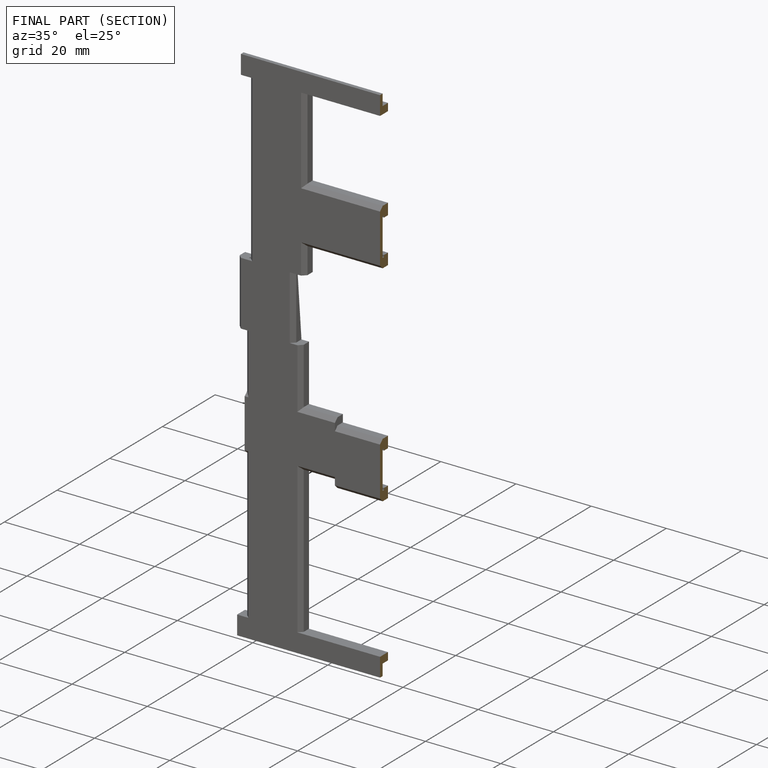
[diagram: finished part — half-section view (interior)]
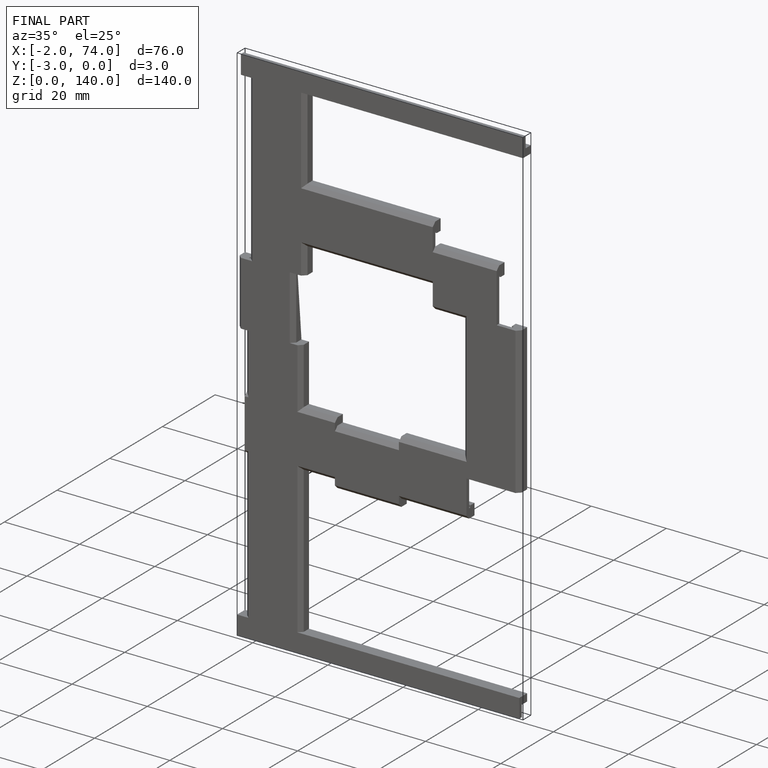
[diagram: finished part — iso view with bounding-box wireframe]
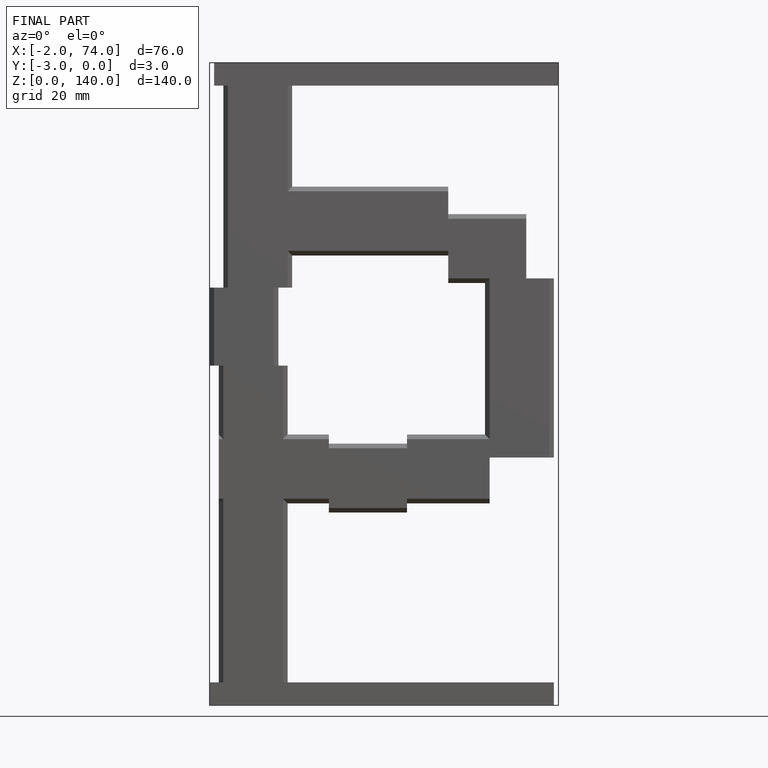
[diagram: finished part — front view with bounding-box wireframe]
